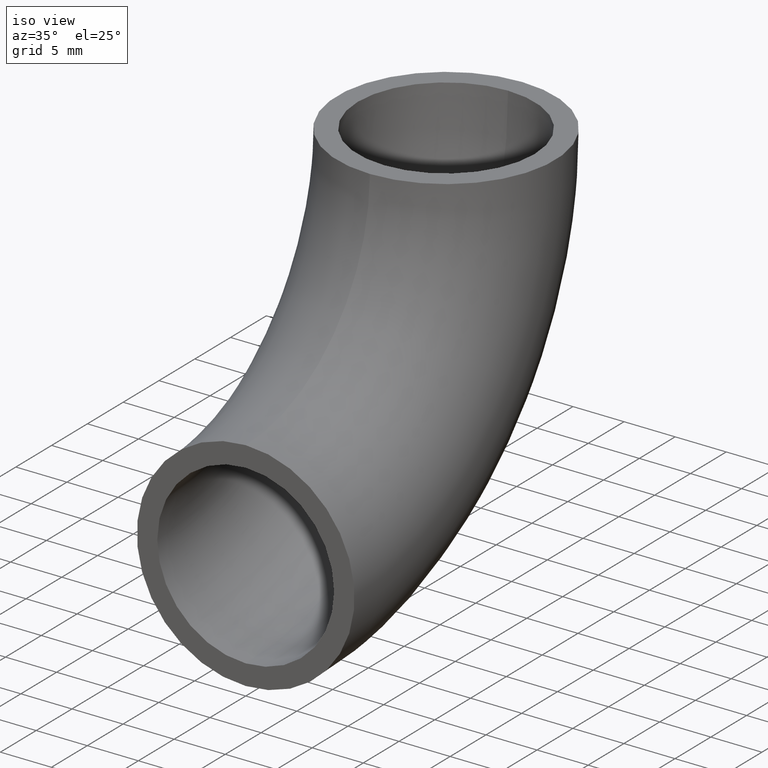
[diagram: clean part render]
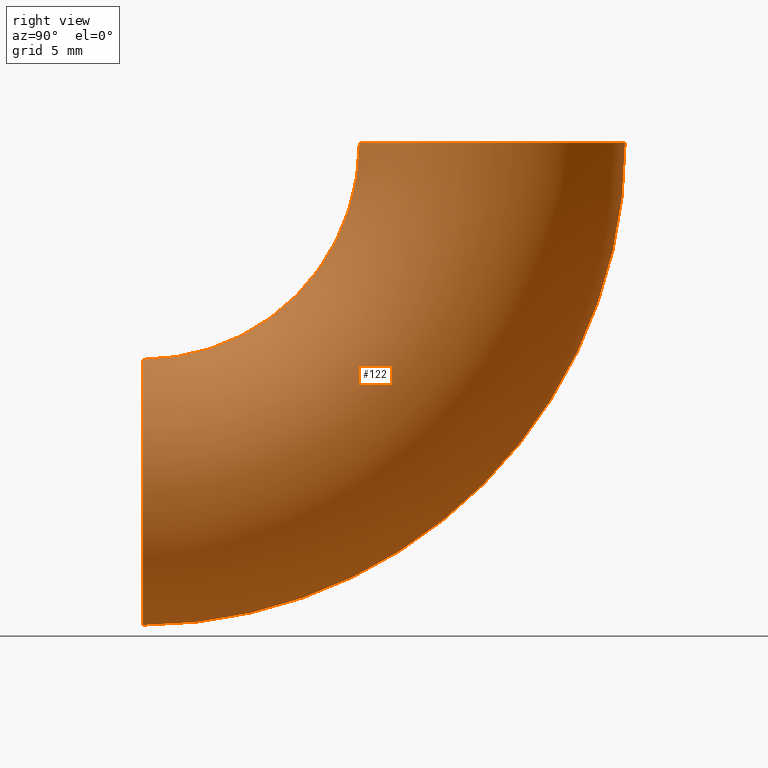
[diagram: tour spotlight — one face highlighted and labeled with its STEP entity id]
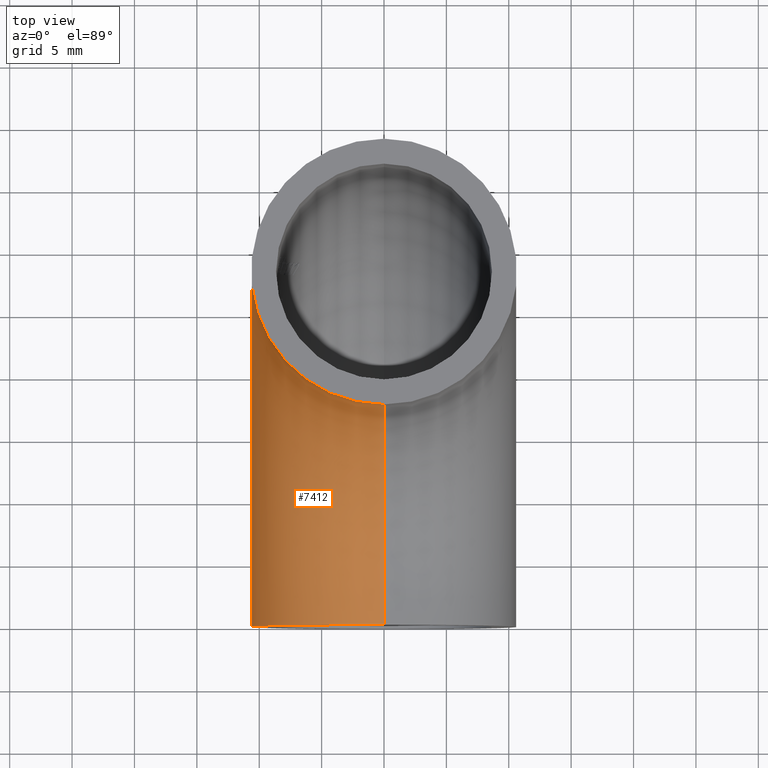
[diagram: tour spotlight — one face highlighted and labeled with its STEP entity id]
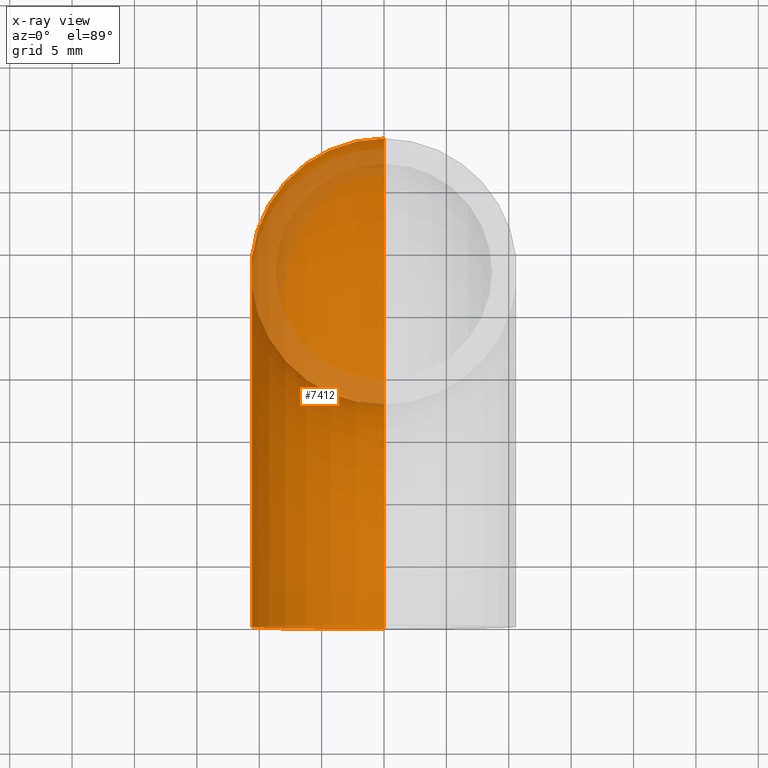
[diagram: x-ray of the same camera — body ghosted, this tour face saturated]
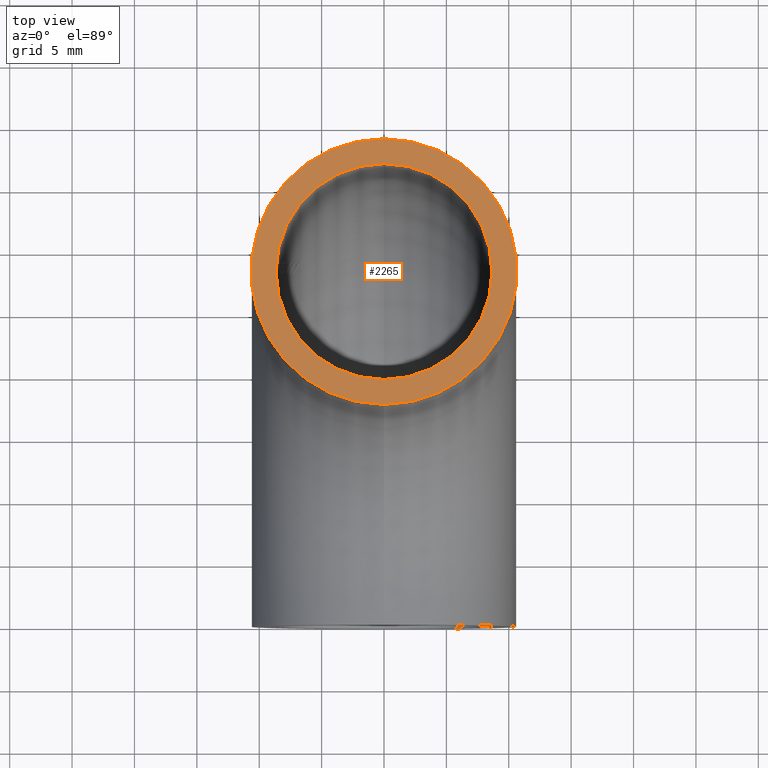
[diagram: tour spotlight — one face highlighted and labeled with its STEP entity id]
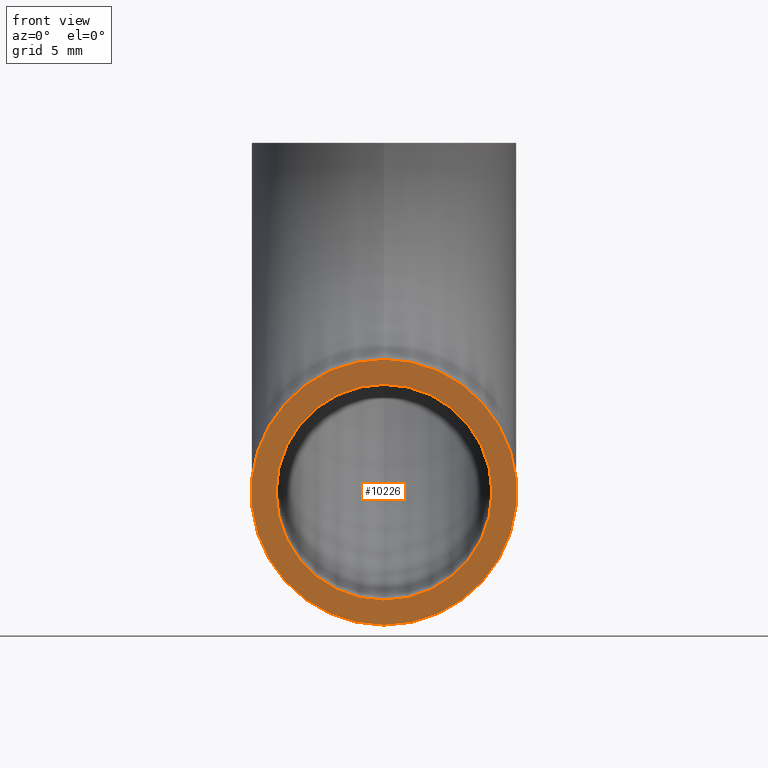
[diagram: tour spotlight — one face highlighted and labeled with its STEP entity id]
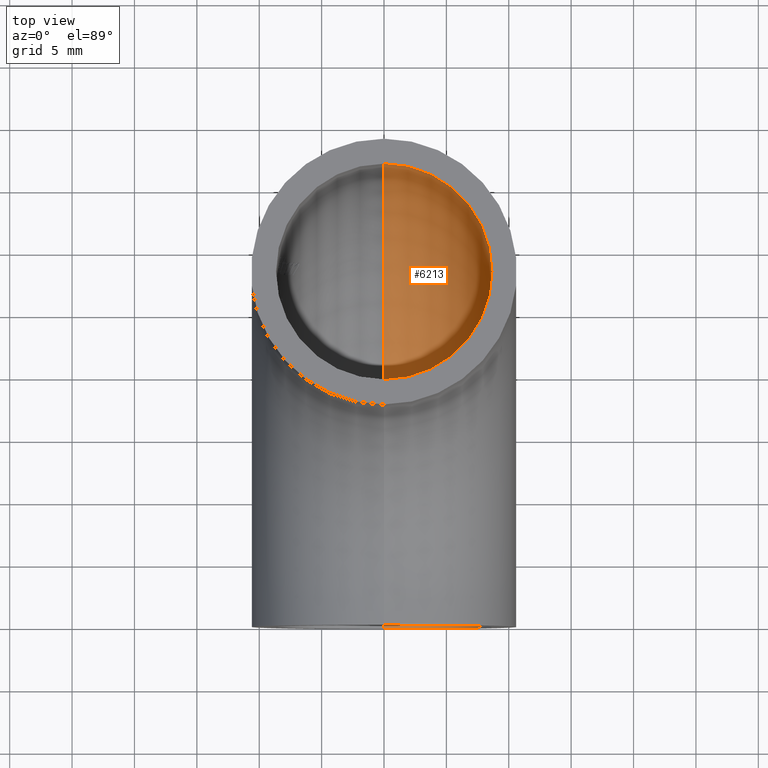
[diagram: tour spotlight — one face highlighted and labeled with its STEP entity id]
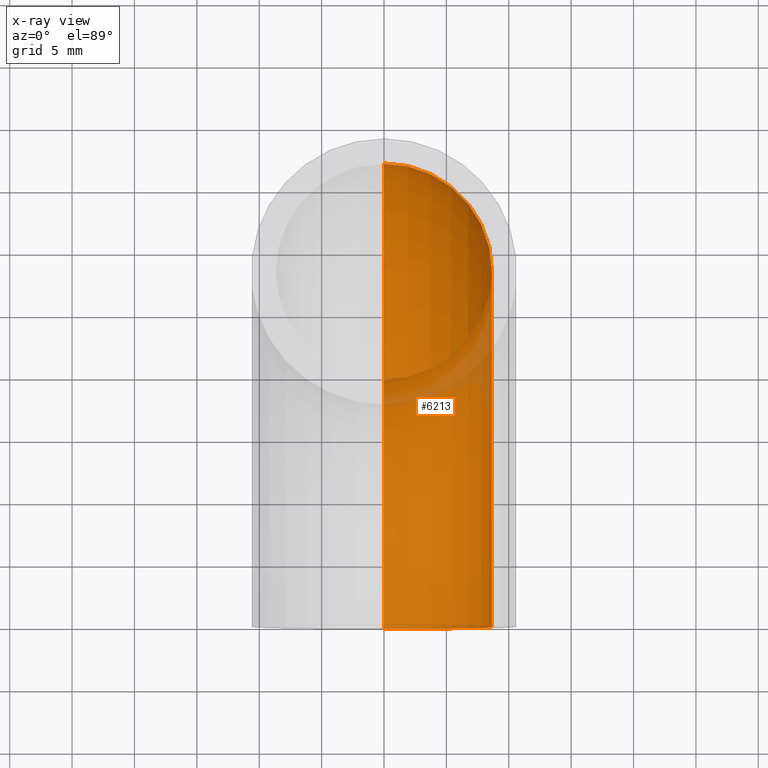
[diagram: x-ray of the same camera — body ghosted, this tour face saturated]
A machine part: a face-by-face anatomy tour. The part has 235 B-rep faces; the first image is the clean iso view, then the 5 largest visible faces are spotlighted one at a time (largest first), each with its STEP entity span.

Face 1 — right view, entity #122. In plain terms, the highlighted toroidal blend (fillet) surface has major radius 28 mm and minor (blend) radius 10.65 mm.
Definition (entity closure, byte-faithful):
#122 = ADVANCED_FACE ( 'NONE', ( #8415 ), #10438, .T. ) ;
#637 = AXIS2_PLACEMENT_3D ( 'NONE', #10890, #7199, #10926 ) ;
#1275 = CIRCLE ( 'NONE', #9707, 17.35000000000000100 ) ;
#1330 = DIRECTION ( 'NONE',  ( 0.0000000000000000000, 0.0000000000000000000, 1.000000000000000000 ) ) ;
#1440 = DIRECTION ( 'NONE',  ( 0.0000000000000000000, 6.123233995736766000E-017, 1.000000000000000000 ) ) ;
#1652 = DIRECTION ( 'NONE',  ( 0.0000000000000000000, 0.0000000000000000000, 1.000000000000000000 ) ) ;
#1827 = CIRCLE ( 'NONE', #637, 38.65000000000000600 ) ;
#2130 = DIRECTION ( 'NONE',  ( 0.0000000000000000000, 1.000000000000000000, 0.0000000000000000000 ) ) ;
#2240 = DIRECTION ( 'NONE',  ( -1.000000000000000000, -0.0000000000000000000, -0.0000000000000000000 ) ) ;
#2257 = AXIS2_PLACEMENT_3D ( 'NONE', #9629, #2130, #4998 ) ;
#2954 = CARTESIAN_POINT ( 'NONE',  ( 0.0000000000000000000, 0.0000000000000000000, -17.35000000000000100 ) ) ;
#3009 = VERTEX_POINT ( 'NONE', #11032 ) ;
#3217 = DIRECTION ( 'NONE',  ( 0.0000000000000000000, -1.000000000000000000, 6.123233995736766000E-017 ) ) ;
#3219 = EDGE_CURVE ( 'NONE', #4454, #5103, #4916, .T. ) ;
#3616 = AXIS2_PLACEMENT_3D ( 'NONE', #11438, #2240, #1330 ) ;
#4454 = VERTEX_POINT ( 'NONE', #10650 ) ;
#4491 = ORIENTED_EDGE ( 'NONE', *, *, #9227, .F. ) ;
#4916 = CIRCLE ( 'NONE', #5268, 10.65000000000000000 ) ;
#4998 = DIRECTION ( 'NONE',  ( 0.0000000000000000000, 0.0000000000000000000, 1.000000000000000000 ) ) ;
#5103 = VERTEX_POINT ( 'NONE', #9790 ) ;
#5268 = AXIS2_PLACEMENT_3D ( 'NONE', #10704, #1440, #3217 ) ;
#6926 = ORIENTED_EDGE ( 'NONE', *, *, #8004, .T. ) ;
#7071 = VERTEX_POINT ( 'NONE', #2954 ) ;
#7199 = DIRECTION ( 'NONE',  ( -1.000000000000000000, -0.0000000000000000000, -0.0000000000000000000 ) ) ;
#7714 = ORIENTED_EDGE ( 'NONE', *, *, #3219, .F. ) ;
#8004 = EDGE_CURVE ( 'NONE', #4454, #7071, #1275, .T. ) ;
#8415 = FACE_OUTER_BOUND ( 'NONE', #11112, .T. ) ;
#9158 = CARTESIAN_POINT ( 'NONE',  ( 1.304248841091931300E-015, 0.0000000000000000000, 0.0000000000000000000 ) ) ;
#9227 = EDGE_CURVE ( 'NONE', #5103, #3009, #1827, .T. ) ;
#9629 = CARTESIAN_POINT ( 'NONE',  ( 0.0000000000000000000, 0.0000000000000000000, -28.00000000000000000 ) ) ;
#9707 = AXIS2_PLACEMENT_3D ( 'NONE', #9158, #11869, #1652 ) ;
#9790 = CARTESIAN_POINT ( 'NONE',  ( 0.0000000000000000000, 38.65000000000000600, -2.366629939352260000E-015 ) ) ;
#9948 = CIRCLE ( 'NONE', #2257, 10.65000000000000000 ) ;
#10381 = ORIENTED_EDGE ( 'NONE', *, *, #11892, .T. ) ;
#10438 = TOROIDAL_SURFACE ( 'NONE', #3616, 28.00000000000000000, 10.65000000000000000 ) ;
#10650 = CARTESIAN_POINT ( 'NONE',  ( 0.0000000000000000000, 17.35000000000000100, -1.062381098260328900E-015 ) ) ;
#10704 = CARTESIAN_POINT ( 'NONE',  ( 0.0000000000000000000, 28.00000000000000000, -1.714505518806294600E-015 ) ) ;
#10890 = CARTESIAN_POINT ( 'NONE',  ( 0.0000000000000000000, 0.0000000000000000000, 0.0000000000000000000 ) ) ;
#10926 = DIRECTION ( 'NONE',  ( 0.0000000000000000000, 0.0000000000000000000, 1.000000000000000000 ) ) ;
#11032 = CARTESIAN_POINT ( 'NONE',  ( 0.0000000000000000000, 0.0000000000000000000, -38.65000000000000600 ) ) ;
#11112 = EDGE_LOOP ( 'NONE', ( #4491, #7714, #6926, #10381 ) ) ;
#11438 = CARTESIAN_POINT ( 'NONE',  ( 0.0000000000000000000, 0.0000000000000000000, 0.0000000000000000000 ) ) ;
#11869 = DIRECTION ( 'NONE',  ( -1.000000000000000000, -0.0000000000000000000, -0.0000000000000000000 ) ) ;
#11892 = EDGE_CURVE ( 'NONE', #7071, #3009, #9948, .T. ) ;

Face 2 — top view, entity #7412. An x-ray twin of the same camera follows (body ghosted, this face saturated) — the face is partly hidden behind the body. In plain terms, the highlighted toroidal blend (fillet) surface has major radius 28 mm and minor (blend) radius 10.65 mm.
Definition (entity closure, byte-faithful):
#637 = AXIS2_PLACEMENT_3D ( 'NONE', #10890, #7199, #10926 ) ;
#697 = TOROIDAL_SURFACE ( 'NONE', #6201, 28.00000000000000000, 10.65000000000000000 ) ;
#1245 = DIRECTION ( 'NONE',  ( 0.0000000000000000000, -1.000000000000000000, 6.123233995736766000E-017 ) ) ;
#1275 = CIRCLE ( 'NONE', #9707, 17.35000000000000100 ) ;
#1646 = ORIENTED_EDGE ( 'NONE', *, *, #8004, .F. ) ;
#1652 = DIRECTION ( 'NONE',  ( 0.0000000000000000000, 0.0000000000000000000, 1.000000000000000000 ) ) ;
#1827 = CIRCLE ( 'NONE', #637, 38.65000000000000600 ) ;
#2101 = CIRCLE ( 'NONE', #9025, 10.65000000000000000 ) ;
#2954 = CARTESIAN_POINT ( 'NONE',  ( 0.0000000000000000000, 0.0000000000000000000, -17.35000000000000100 ) ) ;
#3009 = VERTEX_POINT ( 'NONE', #11032 ) ;
#4400 = CARTESIAN_POINT ( 'NONE',  ( 0.0000000000000000000, 0.0000000000000000000, 0.0000000000000000000 ) ) ;
#4454 = VERTEX_POINT ( 'NONE', #10650 ) ;
#5103 = VERTEX_POINT ( 'NONE', #9790 ) ;
#5822 = ORIENTED_EDGE ( 'NONE', *, *, #9227, .T. ) ;
#6201 = AXIS2_PLACEMENT_3D ( 'NONE', #4400, #11819, #10876 ) ;
#6311 = DIRECTION ( 'NONE',  ( 0.0000000000000000000, 1.000000000000000000, 0.0000000000000000000 ) ) ;
#6793 = ORIENTED_EDGE ( 'NONE', *, *, #10405, .F. ) ;
#6894 = FACE_OUTER_BOUND ( 'NONE', #11784, .T. ) ;
#7071 = VERTEX_POINT ( 'NONE', #2954 ) ;
#7199 = DIRECTION ( 'NONE',  ( -1.000000000000000000, -0.0000000000000000000, -0.0000000000000000000 ) ) ;
#7285 = CARTESIAN_POINT ( 'NONE',  ( 0.0000000000000000000, 0.0000000000000000000, -28.00000000000000000 ) ) ;
#7412 = ADVANCED_FACE ( 'NONE', ( #6894 ), #697, .T. ) ;
#7674 = EDGE_CURVE ( 'NONE', #3009, #7071, #8063, .T. ) ;
#7750 = ORIENTED_EDGE ( 'NONE', *, *, #7674, .T. ) ;
#8004 = EDGE_CURVE ( 'NONE', #4454, #7071, #1275, .T. ) ;
#8063 = CIRCLE ( 'NONE', #10091, 10.65000000000000000 ) ;
#9025 = AXIS2_PLACEMENT_3D ( 'NONE', #11427, #10778, #1245 ) ;
#9158 = CARTESIAN_POINT ( 'NONE',  ( 1.304248841091931300E-015, 0.0000000000000000000, 0.0000000000000000000 ) ) ;
#9227 = EDGE_CURVE ( 'NONE', #5103, #3009, #1827, .T. ) ;
#9707 = AXIS2_PLACEMENT_3D ( 'NONE', #9158, #11869, #1652 ) ;
#9790 = CARTESIAN_POINT ( 'NONE',  ( 0.0000000000000000000, 38.65000000000000600, -2.366629939352260000E-015 ) ) ;
#10091 = AXIS2_PLACEMENT_3D ( 'NONE', #7285, #6311, #10976 ) ;
#10405 = EDGE_CURVE ( 'NONE', #5103, #4454, #2101, .T. ) ;
#10650 = CARTESIAN_POINT ( 'NONE',  ( 0.0000000000000000000, 17.35000000000000100, -1.062381098260328900E-015 ) ) ;
#10778 = DIRECTION ( 'NONE',  ( 0.0000000000000000000, 6.123233995736766000E-017, 1.000000000000000000 ) ) ;
#10876 = DIRECTION ( 'NONE',  ( 0.0000000000000000000, 0.0000000000000000000, 1.000000000000000000 ) ) ;
#10890 = CARTESIAN_POINT ( 'NONE',  ( 0.0000000000000000000, 0.0000000000000000000, 0.0000000000000000000 ) ) ;
#10926 = DIRECTION ( 'NONE',  ( 0.0000000000000000000, 0.0000000000000000000, 1.000000000000000000 ) ) ;
#10976 = DIRECTION ( 'NONE',  ( 0.0000000000000000000, 0.0000000000000000000, 1.000000000000000000 ) ) ;
#11032 = CARTESIAN_POINT ( 'NONE',  ( 0.0000000000000000000, 0.0000000000000000000, -38.65000000000000600 ) ) ;
#11427 = CARTESIAN_POINT ( 'NONE',  ( 0.0000000000000000000, 28.00000000000000000, -1.714505518806294600E-015 ) ) ;
#11784 = EDGE_LOOP ( 'NONE', ( #6793, #5822, #7750, #1646 ) ) ;
#11819 = DIRECTION ( 'NONE',  ( -1.000000000000000000, -0.0000000000000000000, -0.0000000000000000000 ) ) ;
#11869 = DIRECTION ( 'NONE',  ( -1.000000000000000000, -0.0000000000000000000, -0.0000000000000000000 ) ) ;

Face 3 — top view, entity #2265. In plain terms, the highlighted planar face has unit normal (0, 0, 1).
Definition (entity closure, byte-faithful):
#551 = DIRECTION ( 'NONE',  ( 0.0000000000000000000, -1.000000000000000000, 6.123233995736766000E-017 ) ) ;
#1245 = DIRECTION ( 'NONE',  ( 0.0000000000000000000, -1.000000000000000000, 6.123233995736766000E-017 ) ) ;
#1440 = DIRECTION ( 'NONE',  ( 0.0000000000000000000, 6.123233995736766000E-017, 1.000000000000000000 ) ) ;
#1518 = DIRECTION ( 'NONE',  ( 0.0000000000000000000, 6.123233995736766000E-017, 1.000000000000000000 ) ) ;
#1846 = CIRCLE ( 'NONE', #11475, 8.650000000000002100 ) ;
#2101 = CIRCLE ( 'NONE', #9025, 10.65000000000000000 ) ;
#2265 = ADVANCED_FACE ( 'NONE', ( #8388, #10146 ), #4195, .T. ) ;
#2476 = AXIS2_PLACEMENT_3D ( 'NONE', #2901, #8330, #9281 ) ;
#2853 = ORIENTED_EDGE ( 'NONE', *, *, #10405, .T. ) ;
#2879 = DIRECTION ( 'NONE',  ( 0.0000000000000000000, -1.000000000000000000, 6.123233995736766000E-017 ) ) ;
#2901 = CARTESIAN_POINT ( 'NONE',  ( 0.0000000000000000000, 28.00000000000000000, -1.714505518806294600E-015 ) ) ;
#3217 = DIRECTION ( 'NONE',  ( 0.0000000000000000000, -1.000000000000000000, 6.123233995736766000E-017 ) ) ;
#3219 = EDGE_CURVE ( 'NONE', #4454, #5103, #4916, .T. ) ;
#3670 = ORIENTED_EDGE ( 'NONE', *, *, #5368, .F. ) ;
#3795 = CARTESIAN_POINT ( 'NONE',  ( 0.0000000000000000000, 36.64999999999999900, -2.244165259437524800E-015 ) ) ;
#3900 = CARTESIAN_POINT ( 'NONE',  ( 0.0000000000000000000, 28.00000000000000000, -1.714505518806294600E-015 ) ) ;
#4195 = PLANE ( 'NONE',  #4784 ) ;
#4454 = VERTEX_POINT ( 'NONE', #10650 ) ;
#4784 = AXIS2_PLACEMENT_3D ( 'NONE', #11598, #1518, #551 ) ;
#4916 = CIRCLE ( 'NONE', #5268, 10.65000000000000000 ) ;
#5001 = CIRCLE ( 'NONE', #2476, 8.650000000000002100 ) ;
#5103 = VERTEX_POINT ( 'NONE', #9790 ) ;
#5209 = VERTEX_POINT ( 'NONE', #6242 ) ;
#5268 = AXIS2_PLACEMENT_3D ( 'NONE', #10704, #1440, #3217 ) ;
#5368 = EDGE_CURVE ( 'NONE', #5209, #6586, #1846, .T. ) ;
#6242 = CARTESIAN_POINT ( 'NONE',  ( 0.0000000000000000000, 19.34999999999999800, -1.184845778175064300E-015 ) ) ;
#6586 = VERTEX_POINT ( 'NONE', #3795 ) ;
#7559 = DIRECTION ( 'NONE',  ( 0.0000000000000000000, 6.123233995736766000E-017, 1.000000000000000000 ) ) ;
#8330 = DIRECTION ( 'NONE',  ( 0.0000000000000000000, 6.123233995736766000E-017, 1.000000000000000000 ) ) ;
#8388 = FACE_BOUND ( 'NONE', #9934, .T. ) ;
#9025 = AXIS2_PLACEMENT_3D ( 'NONE', #11427, #10778, #1245 ) ;
#9267 = EDGE_CURVE ( 'NONE', #6586, #5209, #5001, .T. ) ;
#9281 = DIRECTION ( 'NONE',  ( 0.0000000000000000000, -1.000000000000000000, 6.123233995736766000E-017 ) ) ;
#9362 = ORIENTED_EDGE ( 'NONE', *, *, #9267, .F. ) ;
#9790 = CARTESIAN_POINT ( 'NONE',  ( 0.0000000000000000000, 38.65000000000000600, -2.366629939352260000E-015 ) ) ;
#9934 = EDGE_LOOP ( 'NONE', ( #3670, #9362 ) ) ;
#10080 = EDGE_LOOP ( 'NONE', ( #11752, #2853 ) ) ;
#10146 = FACE_OUTER_BOUND ( 'NONE', #10080, .T. ) ;
#10405 = EDGE_CURVE ( 'NONE', #5103, #4454, #2101, .T. ) ;
#10650 = CARTESIAN_POINT ( 'NONE',  ( 0.0000000000000000000, 17.35000000000000100, -1.062381098260328900E-015 ) ) ;
#10704 = CARTESIAN_POINT ( 'NONE',  ( 0.0000000000000000000, 28.00000000000000000, -1.714505518806294600E-015 ) ) ;
#10778 = DIRECTION ( 'NONE',  ( 0.0000000000000000000, 6.123233995736766000E-017, 1.000000000000000000 ) ) ;
#11427 = CARTESIAN_POINT ( 'NONE',  ( 0.0000000000000000000, 28.00000000000000000, -1.714505518806294600E-015 ) ) ;
#11475 = AXIS2_PLACEMENT_3D ( 'NONE', #3900, #7559, #2879 ) ;
#11598 = CARTESIAN_POINT ( 'NONE',  ( 0.0000000000000000000, 28.00000000000000000, -1.714505518806294600E-015 ) ) ;
#11752 = ORIENTED_EDGE ( 'NONE', *, *, #3219, .T. ) ;

Face 4 — front view, entity #10226. In plain terms, the highlighted planar face has unit normal (0, 1, 0).
Definition (entity closure, byte-faithful):
#419 = ORIENTED_EDGE ( 'NONE', *, *, #11655, .T. ) ;
#910 = CARTESIAN_POINT ( 'NONE',  ( 0.0000000000000000000, 0.0000000000000000000, -19.34999999999999800 ) ) ;
#2130 = DIRECTION ( 'NONE',  ( 0.0000000000000000000, 1.000000000000000000, 0.0000000000000000000 ) ) ;
#2257 = AXIS2_PLACEMENT_3D ( 'NONE', #9629, #2130, #4998 ) ;
#2713 = DIRECTION ( 'NONE',  ( 0.0000000000000000000, 1.000000000000000000, 0.0000000000000000000 ) ) ;
#2796 = AXIS2_PLACEMENT_3D ( 'NONE', #5419, #2713, #3610 ) ;
#2823 = ORIENTED_EDGE ( 'NONE', *, *, #11446, .T. ) ;
#2954 = CARTESIAN_POINT ( 'NONE',  ( 0.0000000000000000000, 0.0000000000000000000, -17.35000000000000100 ) ) ;
#2992 = ORIENTED_EDGE ( 'NONE', *, *, #11892, .F. ) ;
#3009 = VERTEX_POINT ( 'NONE', #11032 ) ;
#3431 = AXIS2_PLACEMENT_3D ( 'NONE', #7085, #7003, #7929 ) ;
#3610 = DIRECTION ( 'NONE',  ( 0.0000000000000000000, 0.0000000000000000000, 1.000000000000000000 ) ) ;
#4846 = CIRCLE ( 'NONE', #2796, 8.650000000000002100 ) ;
#4856 = FACE_OUTER_BOUND ( 'NONE', #6280, .T. ) ;
#4998 = DIRECTION ( 'NONE',  ( 0.0000000000000000000, 0.0000000000000000000, 1.000000000000000000 ) ) ;
#5177 = CARTESIAN_POINT ( 'NONE',  ( 0.0000000000000000000, 0.0000000000000000000, -28.00000000000000000 ) ) ;
#5419 = CARTESIAN_POINT ( 'NONE',  ( 0.0000000000000000000, 0.0000000000000000000, -28.00000000000000000 ) ) ;
#6027 = CIRCLE ( 'NONE', #11413, 8.650000000000002100 ) ;
#6280 = EDGE_LOOP ( 'NONE', ( #2992, #11477 ) ) ;
#6311 = DIRECTION ( 'NONE',  ( 0.0000000000000000000, 1.000000000000000000, 0.0000000000000000000 ) ) ;
#7003 = DIRECTION ( 'NONE',  ( 0.0000000000000000000, 1.000000000000000000, 0.0000000000000000000 ) ) ;
#7071 = VERTEX_POINT ( 'NONE', #2954 ) ;
#7085 = CARTESIAN_POINT ( 'NONE',  ( 0.0000000000000000000, 0.0000000000000000000, -28.00000000000000000 ) ) ;
#7285 = CARTESIAN_POINT ( 'NONE',  ( 0.0000000000000000000, 0.0000000000000000000, -28.00000000000000000 ) ) ;
#7313 = FACE_BOUND ( 'NONE', #8138, .T. ) ;
#7672 = DIRECTION ( 'NONE',  ( 0.0000000000000000000, 0.0000000000000000000, 1.000000000000000000 ) ) ;
#7674 = EDGE_CURVE ( 'NONE', #3009, #7071, #8063, .T. ) ;
#7929 = DIRECTION ( 'NONE',  ( 0.0000000000000000000, -0.0000000000000000000, 1.000000000000000000 ) ) ;
#7998 = CARTESIAN_POINT ( 'NONE',  ( 0.0000000000000000000, 0.0000000000000000000, -36.64999999999999900 ) ) ;
#8063 = CIRCLE ( 'NONE', #10091, 10.65000000000000000 ) ;
#8138 = EDGE_LOOP ( 'NONE', ( #419, #2823 ) ) ;
#9562 = DIRECTION ( 'NONE',  ( 0.0000000000000000000, 1.000000000000000000, 0.0000000000000000000 ) ) ;
#9629 = CARTESIAN_POINT ( 'NONE',  ( 0.0000000000000000000, 0.0000000000000000000, -28.00000000000000000 ) ) ;
#9642 = VERTEX_POINT ( 'NONE', #7998 ) ;
#9948 = CIRCLE ( 'NONE', #2257, 10.65000000000000000 ) ;
#10091 = AXIS2_PLACEMENT_3D ( 'NONE', #7285, #6311, #10976 ) ;
#10226 = ADVANCED_FACE ( 'NONE', ( #7313, #4856 ), #11630, .F. ) ;
#10976 = DIRECTION ( 'NONE',  ( 0.0000000000000000000, 0.0000000000000000000, 1.000000000000000000 ) ) ;
#11032 = CARTESIAN_POINT ( 'NONE',  ( 0.0000000000000000000, 0.0000000000000000000, -38.65000000000000600 ) ) ;
#11413 = AXIS2_PLACEMENT_3D ( 'NONE', #5177, #9562, #7672 ) ;
#11446 = EDGE_CURVE ( 'NONE', #9642, #11804, #4846, .T. ) ;
#11477 = ORIENTED_EDGE ( 'NONE', *, *, #7674, .F. ) ;
#11630 = PLANE ( 'NONE',  #3431 ) ;
#11655 = EDGE_CURVE ( 'NONE', #11804, #9642, #6027, .T. ) ;
#11804 = VERTEX_POINT ( 'NONE', #910 ) ;
#11892 = EDGE_CURVE ( 'NONE', #7071, #3009, #9948, .T. ) ;

Face 5 — top view, entity #6213. An x-ray twin of the same camera follows (body ghosted, this face saturated) — the face is partly hidden behind the body. In plain terms, the highlighted toroidal blend (fillet) surface has major radius 28 mm and minor (blend) radius 8.65 mm.
Definition (entity closure, byte-faithful):
#380 = ORIENTED_EDGE ( 'NONE', *, *, #3548, .T. ) ;
#541 = AXIS2_PLACEMENT_3D ( 'NONE', #6629, #6663, #3846 ) ;
#559 = TOROIDAL_SURFACE ( 'NONE', #8364, 28.00000000000000000, 8.650000000000002100 ) ;
#910 = CARTESIAN_POINT ( 'NONE',  ( 0.0000000000000000000, 0.0000000000000000000, -19.34999999999999800 ) ) ;
#1444 = CIRCLE ( 'NONE', #6726, 36.64999999999999900 ) ;
#1628 = DIRECTION ( 'NONE',  ( 0.0000000000000000000, 0.0000000000000000000, 1.000000000000000000 ) ) ;
#1846 = CIRCLE ( 'NONE', #11475, 8.650000000000002100 ) ;
#2303 = DIRECTION ( 'NONE',  ( -1.000000000000000000, -0.0000000000000000000, -0.0000000000000000000 ) ) ;
#2879 = DIRECTION ( 'NONE',  ( 0.0000000000000000000, -1.000000000000000000, 6.123233995736766000E-017 ) ) ;
#3548 = EDGE_CURVE ( 'NONE', #6586, #9642, #1444, .T. ) ;
#3795 = CARTESIAN_POINT ( 'NONE',  ( 0.0000000000000000000, 36.64999999999999900, -2.244165259437524800E-015 ) ) ;
#3846 = DIRECTION ( 'NONE',  ( 0.0000000000000000000, 0.0000000000000000000, 1.000000000000000000 ) ) ;
#3900 = CARTESIAN_POINT ( 'NONE',  ( 0.0000000000000000000, 28.00000000000000000, -1.714505518806294600E-015 ) ) ;
#4227 = DIRECTION ( 'NONE',  ( 0.0000000000000000000, 0.0000000000000000000, 1.000000000000000000 ) ) ;
#4617 = EDGE_CURVE ( 'NONE', #5209, #11804, #11871, .T. ) ;
#4687 = ORIENTED_EDGE ( 'NONE', *, *, #5368, .T. ) ;
#5177 = CARTESIAN_POINT ( 'NONE',  ( 0.0000000000000000000, 0.0000000000000000000, -28.00000000000000000 ) ) ;
#5209 = VERTEX_POINT ( 'NONE', #6242 ) ;
#5368 = EDGE_CURVE ( 'NONE', #5209, #6586, #1846, .T. ) ;
#5552 = EDGE_LOOP ( 'NONE', ( #4687, #380, #8074, #7351 ) ) ;
#6027 = CIRCLE ( 'NONE', #11413, 8.650000000000002100 ) ;
#6213 = ADVANCED_FACE ( 'NONE', ( #9401 ), #559, .F. ) ;
#6242 = CARTESIAN_POINT ( 'NONE',  ( 0.0000000000000000000, 19.34999999999999800, -1.184845778175064300E-015 ) ) ;
#6586 = VERTEX_POINT ( 'NONE', #3795 ) ;
#6629 = CARTESIAN_POINT ( 'NONE',  ( 1.059319481262460800E-015, 0.0000000000000000000, 0.0000000000000000000 ) ) ;
#6663 = DIRECTION ( 'NONE',  ( -1.000000000000000000, -0.0000000000000000000, -0.0000000000000000000 ) ) ;
#6726 = AXIS2_PLACEMENT_3D ( 'NONE', #7842, #2303, #4227 ) ;
#7168 = CARTESIAN_POINT ( 'NONE',  ( 0.0000000000000000000, 0.0000000000000000000, 0.0000000000000000000 ) ) ;
#7351 = ORIENTED_EDGE ( 'NONE', *, *, #4617, .F. ) ;
#7559 = DIRECTION ( 'NONE',  ( 0.0000000000000000000, 6.123233995736766000E-017, 1.000000000000000000 ) ) ;
#7672 = DIRECTION ( 'NONE',  ( 0.0000000000000000000, 0.0000000000000000000, 1.000000000000000000 ) ) ;
#7842 = CARTESIAN_POINT ( 'NONE',  ( 0.0000000000000000000, 0.0000000000000000000, 0.0000000000000000000 ) ) ;
#7998 = CARTESIAN_POINT ( 'NONE',  ( 0.0000000000000000000, 0.0000000000000000000, -36.64999999999999900 ) ) ;
#8059 = DIRECTION ( 'NONE',  ( -1.000000000000000000, -0.0000000000000000000, -0.0000000000000000000 ) ) ;
#8074 = ORIENTED_EDGE ( 'NONE', *, *, #11655, .F. ) ;
#8364 = AXIS2_PLACEMENT_3D ( 'NONE', #7168, #8059, #1628 ) ;
#9401 = FACE_OUTER_BOUND ( 'NONE', #5552, .T. ) ;
#9562 = DIRECTION ( 'NONE',  ( 0.0000000000000000000, 1.000000000000000000, 0.0000000000000000000 ) ) ;
#9642 = VERTEX_POINT ( 'NONE', #7998 ) ;
#11413 = AXIS2_PLACEMENT_3D ( 'NONE', #5177, #9562, #7672 ) ;
#11475 = AXIS2_PLACEMENT_3D ( 'NONE', #3900, #7559, #2879 ) ;
#11655 = EDGE_CURVE ( 'NONE', #11804, #9642, #6027, .T. ) ;
#11804 = VERTEX_POINT ( 'NONE', #910 ) ;
#11871 = CIRCLE ( 'NONE', #541, 19.34999999999999800 ) ;